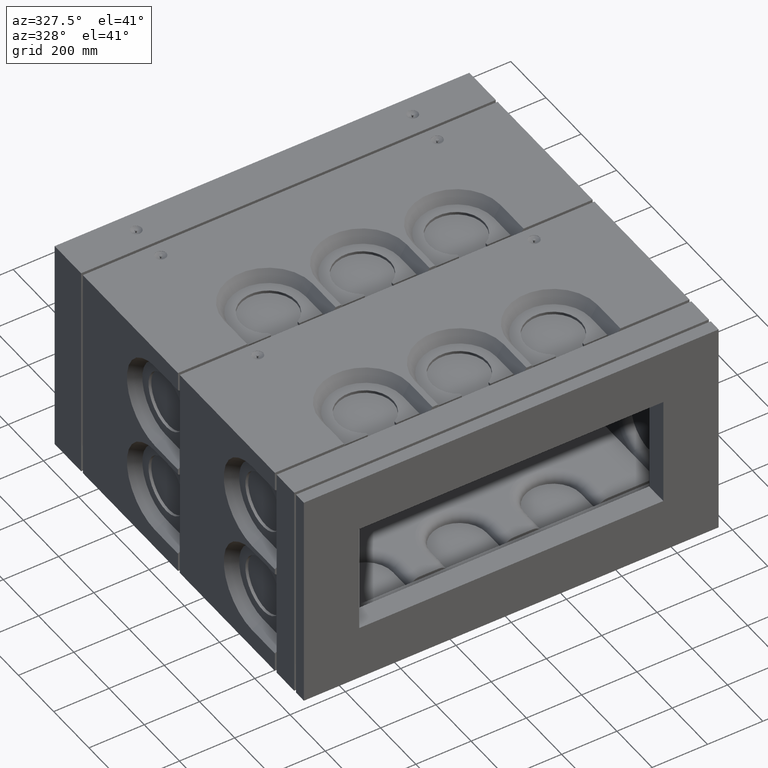
[diagram: clean part render]
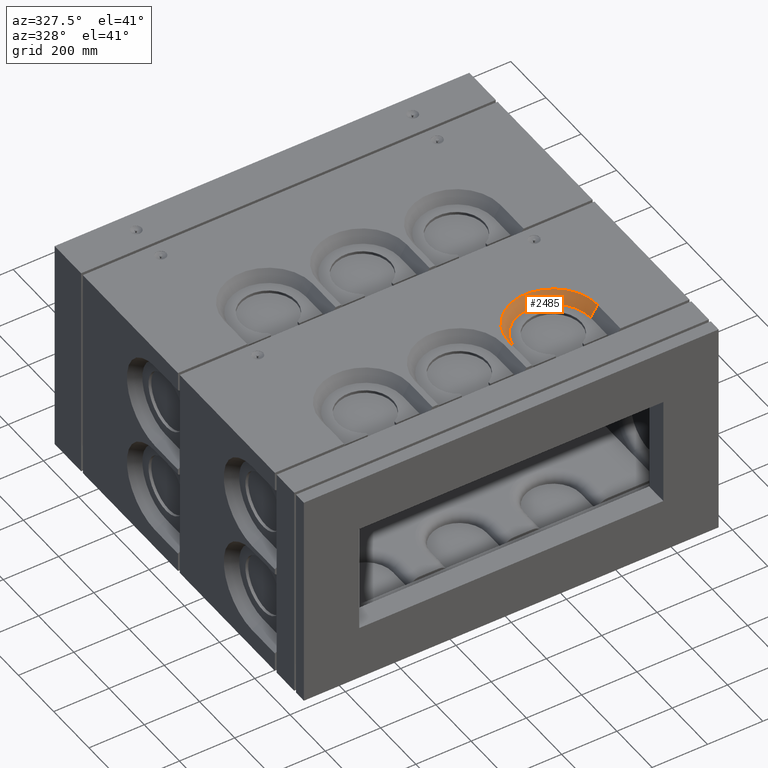
[diagram: same view with one face highlighted and labeled with its STEP entity id]
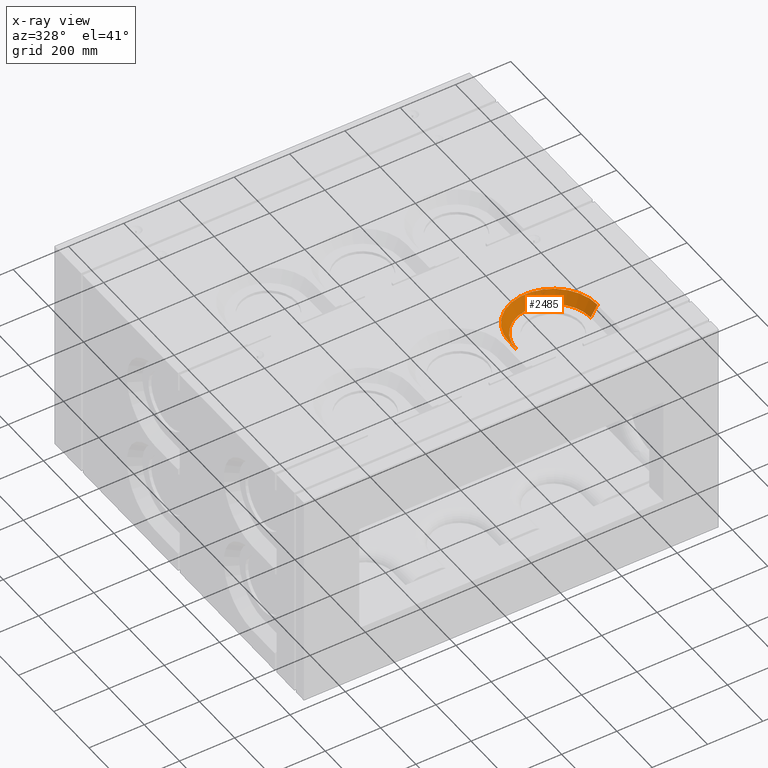
[diagram: x-ray of the same camera — body ghosted, the highlighted face saturated]
A machine part, auxiliary view. The second image highlights one B-rep face of the part: STEP entity #2485.
The next image is the same camera in x-ray: the body ghosted, the highlighted face saturated — about 0% of this face is hidden behind the body in this view.
In plain terms, the highlighted conical surface has half-angle 32 deg.
Its self-contained STEP definition (entity closure, byte-faithful):
#453 = VERTEX_POINT ( 'NONE', #28542 ) ;
#2485 = ADVANCED_FACE ( 'NONE', ( #6262 ), #36784, .F. ) ;
#4762 = CARTESIAN_POINT ( 'NONE',  ( 340.0000000000003979, 294.9999999999990337, 360.0000000000000568 ) ) ;
#5085 = CARTESIAN_POINT ( 'NONE',  ( 340.0000000000003979, 294.9999999999990337, 400.0000000000000568 ) ) ;
#6262 = FACE_OUTER_BOUND ( 'NONE', #38260, .T. ) ;
#7704 = VERTEX_POINT ( 'NONE', #31385 ) ;
#8076 = DIRECTION ( 'NONE',  ( -8.095376221225034036E-18, 4.996003610813208376E-16, -1.000000000000000000 ) ) ;
#8212 = DIRECTION ( 'NONE',  ( -1.000000000000000000, 0.0000000000000000000, 0.0000000000000000000 ) ) ;
#8348 = EDGE_CURVE ( 'NONE', #19147, #7704, #24961, .T. ) ;
#9334 = DIRECTION ( 'NONE',  ( -0.5299192642332061221, -4.236851350540767367E-16, 0.8480480961564252906 ) ) ;
#10576 = AXIS2_PLACEMENT_3D ( 'NONE', #4762, #28443, #19286 ) ;
#10874 = LINE ( 'NONE', #26531, #26056 ) ;
#11504 = AXIS2_PLACEMENT_3D ( 'NONE', #19903, #14122, #29093 ) ;
#13048 = EDGE_CURVE ( 'NONE', #26773, #7704, #10874, .T. ) ;
#13278 = CARTESIAN_POINT ( 'NONE',  ( 475.0052259236273926, 294.9999999999990337, 360.0000000000000568 ) ) ;
#13719 = ORIENTED_EDGE ( 'NONE', *, *, #13048, .T. ) ;
#14122 = DIRECTION ( 'NONE',  ( 8.095376221225034036E-18, -4.996003610813208376E-16, 1.000000000000000000 ) ) ;
#16345 = ORIENTED_EDGE ( 'NONE', *, *, #8348, .F. ) ;
#19147 = VERTEX_POINT ( 'NONE', #19370 ) ;
#19286 = DIRECTION ( 'NONE',  ( 1.000000000000000000, 0.0000000000000000000, 0.0000000000000000000 ) ) ;
#19370 = CARTESIAN_POINT ( 'NONE',  ( 180.0000000000004832, 294.9999999999990337, 400.0000000000000568 ) ) ;
#19636 = LINE ( 'NONE', #26383, #35382 ) ;
#19903 = CARTESIAN_POINT ( 'NONE',  ( 340.0000000000003979, 294.9999999999990337, 400.0000000000000568 ) ) ;
#21019 = CIRCLE ( 'NONE', #10576, 135.0052259236268526 ) ;
#21474 = ORIENTED_EDGE ( 'NONE', *, *, #33215, .T. ) ;
#22068 = ORIENTED_EDGE ( 'NONE', *, *, #23181, .F. ) ;
#23181 = EDGE_CURVE ( 'NONE', #453, #19147, #19636, .T. ) ;
#24961 = CIRCLE ( 'NONE', #33595, 160.0000000000000568 ) ;
#26056 = VECTOR ( 'NONE', #29561, 1000.000000000000114 ) ;
#26383 = CARTESIAN_POINT ( 'NONE',  ( 180.0000000000003695, 294.9999999999990337, 400.0000000000000568 ) ) ;
#26531 = CARTESIAN_POINT ( 'NONE',  ( 500.0000000000005684, 294.9999999999990337, 400.0000000000000568 ) ) ;
#26773 = VERTEX_POINT ( 'NONE', #13278 ) ;
#28443 = DIRECTION ( 'NONE',  ( -8.095376221225034036E-18, 4.996003610813208376E-16, -1.000000000000000000 ) ) ;
#28542 = CARTESIAN_POINT ( 'NONE',  ( 204.9947740763735737, 294.9999999999990337, 360.0000000000000568 ) ) ;
#29093 = DIRECTION ( 'NONE',  ( -1.000000000000000000, 0.0000000000000000000, 0.0000000000000000000 ) ) ;
#29561 = DIRECTION ( 'NONE',  ( 0.5299192642332061221, -4.236851350540767367E-16, 0.8480480961564252906 ) ) ;
#31385 = CARTESIAN_POINT ( 'NONE',  ( 500.0000000000005684, 294.9999999999990337, 400.0000000000000568 ) ) ;
#33215 = EDGE_CURVE ( 'NONE', #453, #26773, #21019, .T. ) ;
#33595 = AXIS2_PLACEMENT_3D ( 'NONE', #5085, #8076, #8212 ) ;
#35382 = VECTOR ( 'NONE', #9334, 1000.000000000000114 ) ;
#36784 = CONICAL_SURFACE ( 'NONE', #11504, 160.0000000000000568, 0.5585053606381866764 ) ;
#38260 = EDGE_LOOP ( 'NONE', ( #16345, #22068, #21474, #13719 ) ) ;